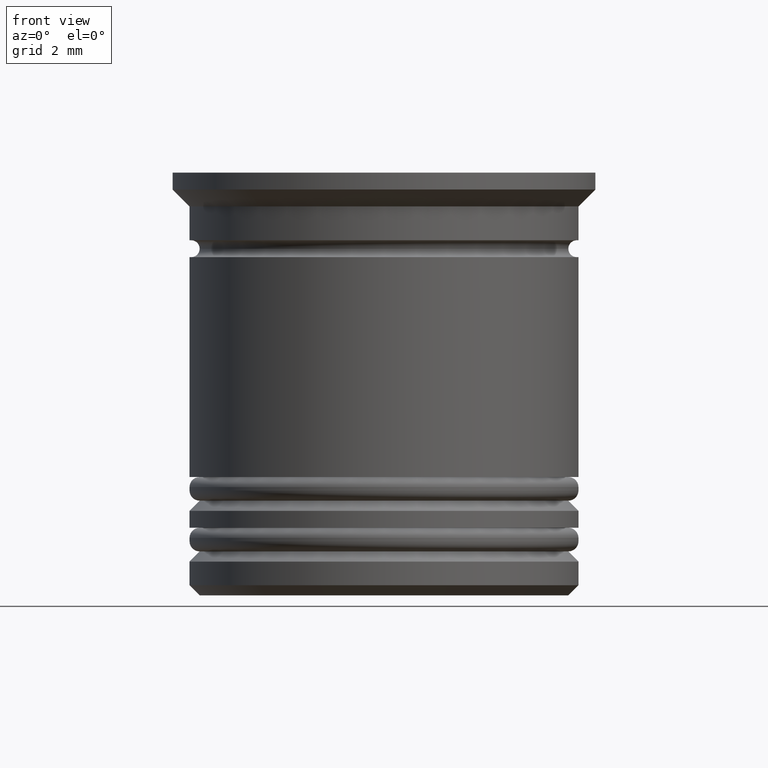
[diagram: clean part render]
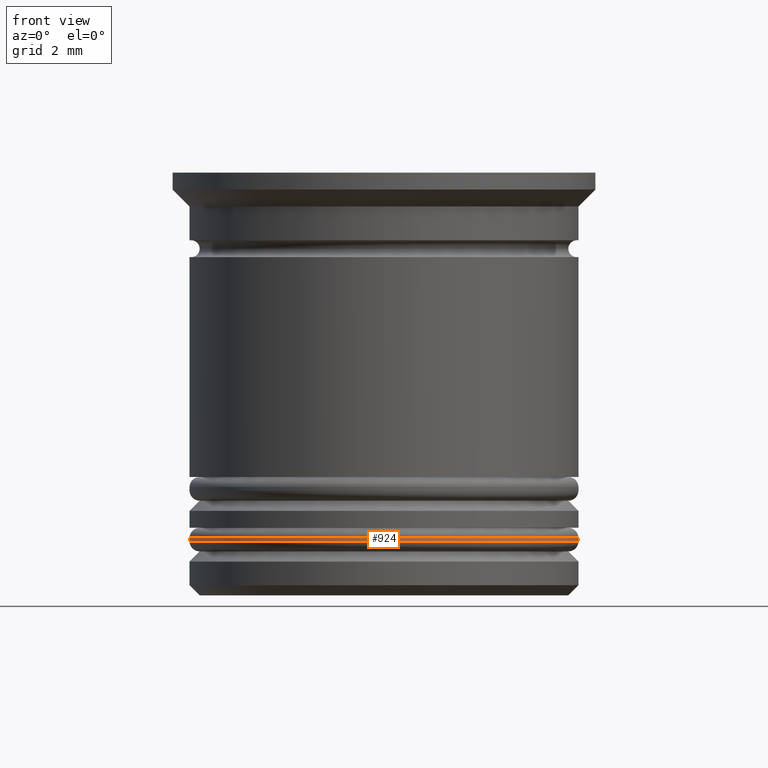
[diagram: same view with one face highlighted and labeled with its STEP entity id]
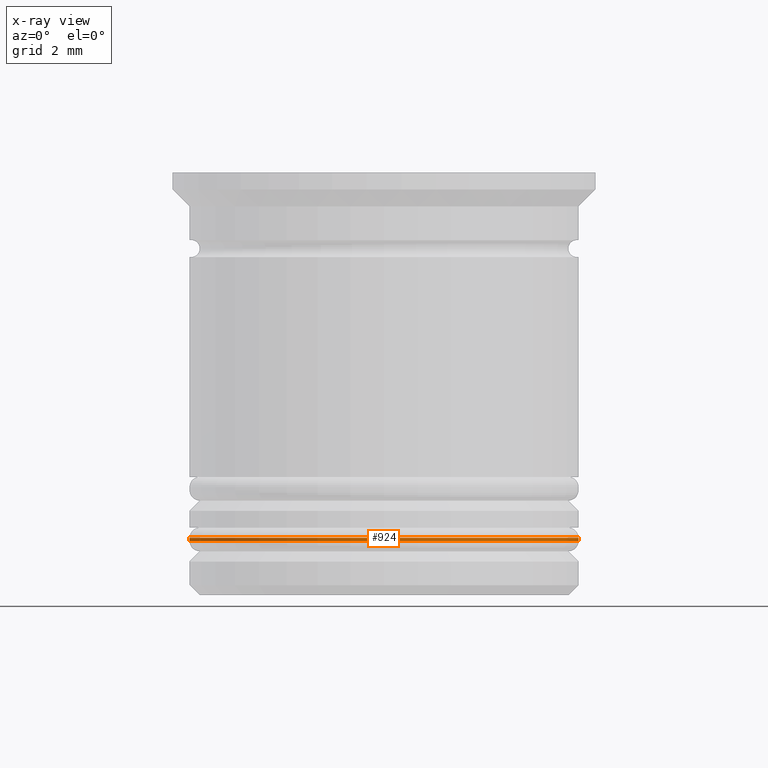
[diagram: x-ray of the same camera — body ghosted, the highlighted face saturated]
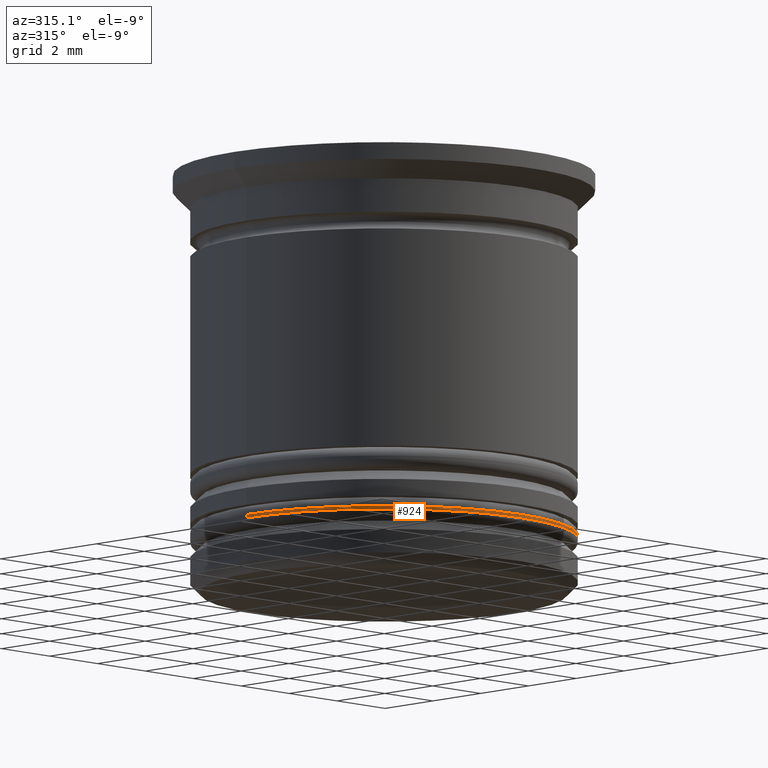
[diagram: same view with one face highlighted and labeled with its STEP entity id]
A machine part, front view. The second image highlights one B-rep face of the part: STEP entity #924.
The next image is the same camera in x-ray: the body ghosted, the highlighted face saturated — about 0% of this face is hidden behind the body in this view.
A second angle (auxiliary view) of the same face is appended — the face is thin or edge-on in the first view.
In plain terms, the highlighted cylindrical surface (partial cylindrical patch) has radius 5.75 mm, axis along (-0, -0, 1).
Its self-contained STEP definition (entity closure, byte-faithful):
#95 = CARTESIAN_POINT ( 'NONE',  ( 5.750000000000001776, 0.000000000000000000, -10.90000000000000391 ) ) ;
#111 = DIRECTION ( 'NONE',  ( -1.000000000000000000, 0.000000000000000000, 0.000000000000000000 ) ) ;
#186 = LINE ( 'NONE', #469, #1593 ) ;
#204 = LINE ( 'NONE', #1241, #292 ) ;
#292 = VECTOR ( 'NONE', #1866, 1000.000000000000000 ) ;
#469 = CARTESIAN_POINT ( 'NONE',  ( 5.750000000000001776, 0.000000000000000000, -27.46345596729060290 ) ) ;
#488 = AXIS2_PLACEMENT_3D ( 'NONE', #871, #1493, #111 ) ;
#641 = ORIENTED_EDGE ( 'NONE', *, *, #1013, .T. ) ;
#747 = ORIENTED_EDGE ( 'NONE', *, *, #1851, .F. ) ;
#806 = CARTESIAN_POINT ( 'NONE',  ( 0.000000000000000000, 0.000000000000000000, -27.46345596729060290 ) ) ;
#831 = EDGE_CURVE ( 'NONE', #1533, #1707, #944, .T. ) ;
#871 = CARTESIAN_POINT ( 'NONE',  ( 0.000000000000000000, 0.000000000000000000, -10.80000000000000071 ) ) ;
#905 = DIRECTION ( 'NONE',  ( 0.000000000000000000, 0.000000000000000000, 1.000000000000000000 ) ) ;
#924 = ADVANCED_FACE ( 'NONE', ( #1224 ), #960, .T. ) ;
#944 = CIRCLE ( 'NONE', #488, 5.750000000000001776 ) ;
#960 = CYLINDRICAL_SURFACE ( 'NONE', #1154, 5.750000000000001776 ) ;
#1013 = EDGE_CURVE ( 'NONE', #1840, #1248, #1871, .T. ) ;
#1081 = EDGE_LOOP ( 'NONE', ( #747, #641, #1422, #1716 ) ) ;
#1096 = AXIS2_PLACEMENT_3D ( 'NONE', #1703, #905, #1693 ) ;
#1154 = AXIS2_PLACEMENT_3D ( 'NONE', #806, #1419, #1211 ) ;
#1211 = DIRECTION ( 'NONE',  ( 1.000000000000000000, 0.000000000000000000, 0.000000000000000000 ) ) ;
#1224 = FACE_OUTER_BOUND ( 'NONE', #1081, .T. ) ;
#1241 = CARTESIAN_POINT ( 'NONE',  ( -5.750000000000001776, 7.041719095097282852E-16, -27.46345596729060290 ) ) ;
#1248 = VERTEX_POINT ( 'NONE', #95 ) ;
#1262 = CARTESIAN_POINT ( 'NONE',  ( 5.750000000000001776, 0.000000000000000000, -10.80000000000000071 ) ) ;
#1276 = DIRECTION ( 'NONE',  ( -0.000000000000000000, -0.000000000000000000, 1.000000000000000000 ) ) ;
#1312 = CARTESIAN_POINT ( 'NONE',  ( -5.750000000000001776, 7.041719095097282852E-16, -10.80000000000000071 ) ) ;
#1397 = EDGE_CURVE ( 'NONE', #1248, #1533, #186, .T. ) ;
#1419 = DIRECTION ( 'NONE',  ( -0.000000000000000000, -0.000000000000000000, 1.000000000000000000 ) ) ;
#1422 = ORIENTED_EDGE ( 'NONE', *, *, #1397, .T. ) ;
#1493 = DIRECTION ( 'NONE',  ( 0.000000000000000000, 0.000000000000000000, -1.000000000000000000 ) ) ;
#1530 = CARTESIAN_POINT ( 'NONE',  ( -5.750000000000001776, 7.041719095097282852E-16, -10.90000000000000391 ) ) ;
#1533 = VERTEX_POINT ( 'NONE', #1262 ) ;
#1593 = VECTOR ( 'NONE', #1276, 1000.000000000000000 ) ;
#1693 = DIRECTION ( 'NONE',  ( 1.000000000000000000, 0.000000000000000000, 0.000000000000000000 ) ) ;
#1703 = CARTESIAN_POINT ( 'NONE',  ( 0.000000000000000000, 0.000000000000000000, -10.90000000000000391 ) ) ;
#1707 = VERTEX_POINT ( 'NONE', #1312 ) ;
#1716 = ORIENTED_EDGE ( 'NONE', *, *, #831, .T. ) ;
#1840 = VERTEX_POINT ( 'NONE', #1530 ) ;
#1851 = EDGE_CURVE ( 'NONE', #1840, #1707, #204, .T. ) ;
#1866 = DIRECTION ( 'NONE',  ( -0.000000000000000000, -0.000000000000000000, 1.000000000000000000 ) ) ;
#1871 = CIRCLE ( 'NONE', #1096, 5.750000000000001776 ) ;